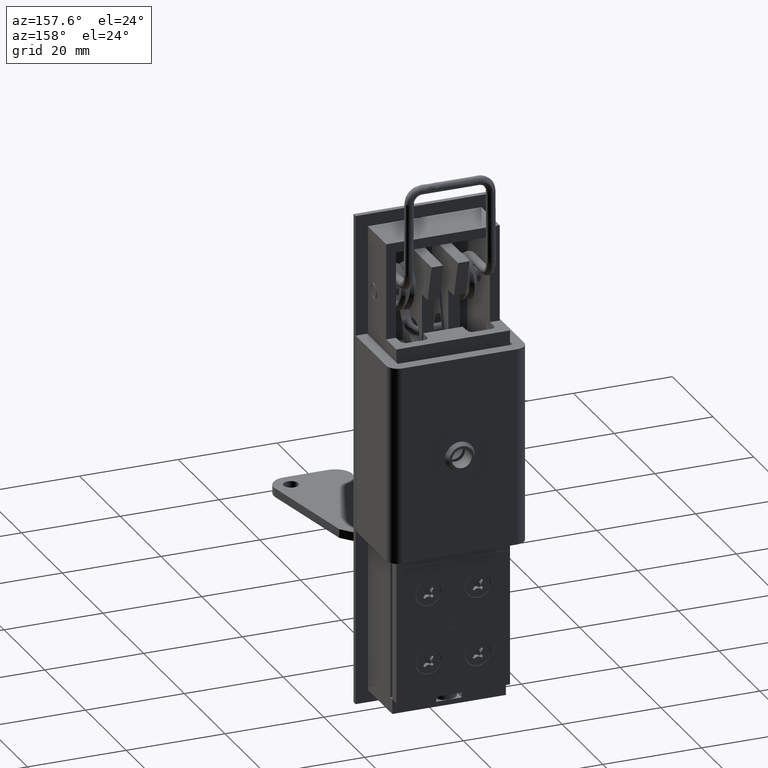
[diagram: clean part render]
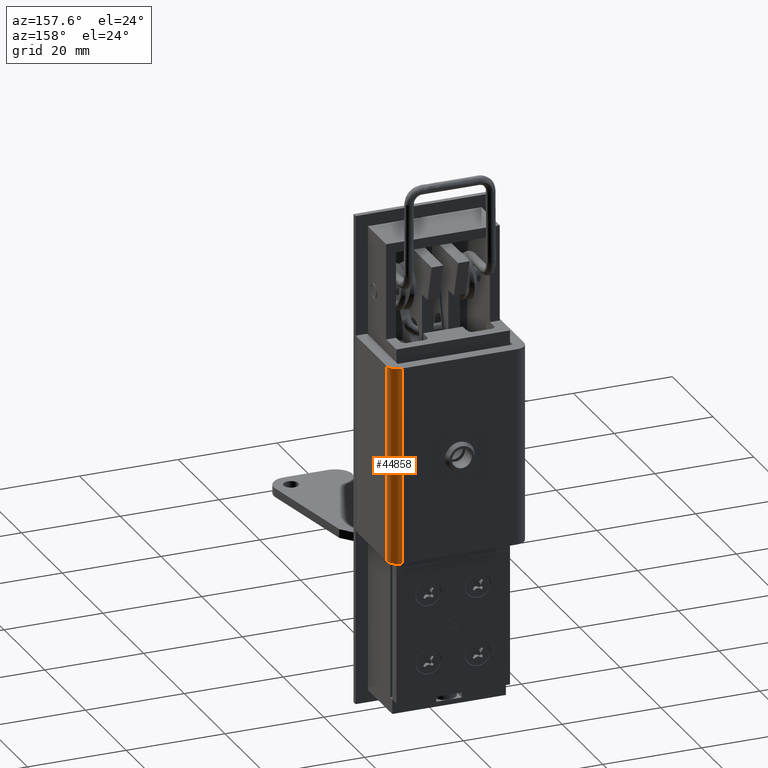
[diagram: same view with one face highlighted and labeled with its STEP entity id]
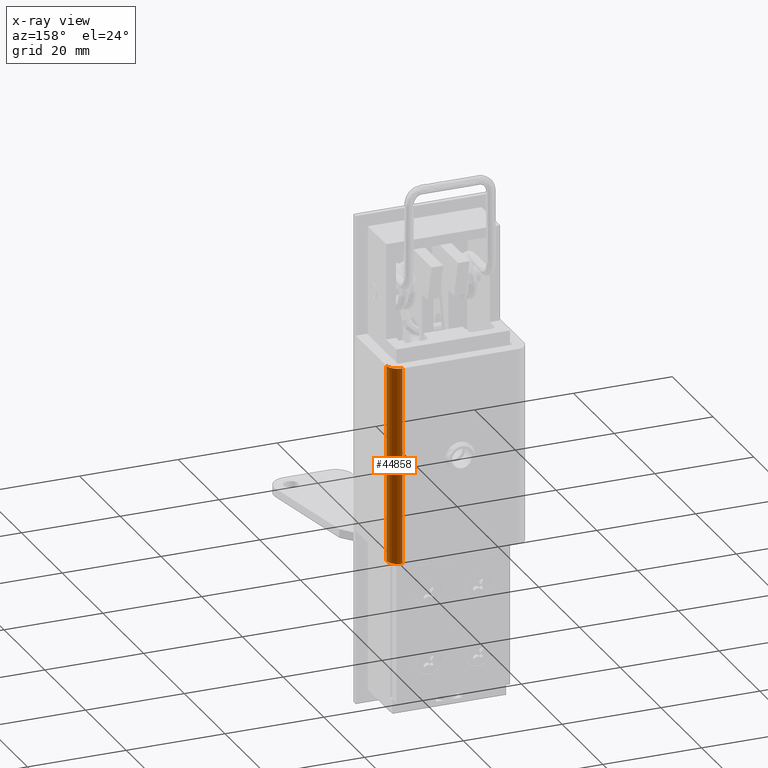
[diagram: x-ray of the same camera — body ghosted, the highlighted face saturated]
A machine part, auxiliary view. The second image highlights one B-rep face of the part: STEP entity #44858.
The next image is the same camera in x-ray: the body ghosted, the highlighted face saturated — about 0% of this face is hidden behind the body in this view.
In plain terms, the highlighted face is a freeform B-spline surface patch.
Its self-contained STEP definition (entity closure, byte-faithful):
#44589=CARTESIAN_POINT('',(16.0,-13.949999999999999,75.500010000000003));
#44590=VERTEX_POINT('',#44589);
#44596=CARTESIAN_POINT('',(18.300000000000001,-11.650000000000000,75.500010000000003));
#44597=VERTEX_POINT('',#44596);
#44598=CARTESIAN_POINT('',(16.0,-13.949999999999999,75.500010000000003));
#44599=CARTESIAN_POINT('',(18.300000000000004,-13.949999999999999,75.500010000000003));
#44600=CARTESIAN_POINT('',(18.300000000000001,-11.650000000000000,75.500010000000003));
#44608=(BOUNDED_CURVE()B_SPLINE_CURVE(2,(#44598,#44599,#44600),.UNSPECIFIED.,.F.,.U.)CURVE()GEOMETRIC_REPRESENTATION_ITEM()QUASI_UNIFORM_CURVE()RATIONAL_B_SPLINE_CURVE((1.0,0.707106781186547,1.0))REPRESENTATION_ITEM(''));
#44609=EDGE_CURVE('',#44590,#44597,#44608,.T.);
#44663=CARTESIAN_POINT('',(18.300000000000001,-11.650000000000000,35.500000000000000));
#44664=VERTEX_POINT('',#44663);
#44670=CARTESIAN_POINT('',(16.0,-13.949999999999999,35.500000000000000));
#44671=VERTEX_POINT('',#44670);
#44672=CARTESIAN_POINT('',(16.0,-13.949999999999999,35.500000000000000));
#44673=CARTESIAN_POINT('',(18.300000000000004,-13.949999999999999,35.499999999999993));
#44674=CARTESIAN_POINT('',(18.300000000000001,-11.650000000000000,35.500000000000000));
#44682=(BOUNDED_CURVE()B_SPLINE_CURVE(2,(#44672,#44673,#44674),.UNSPECIFIED.,.F.,.U.)CURVE()GEOMETRIC_REPRESENTATION_ITEM()QUASI_UNIFORM_CURVE()RATIONAL_B_SPLINE_CURVE((1.0,0.707106781186547,1.0))REPRESENTATION_ITEM(''));
#44683=EDGE_CURVE('',#44671,#44664,#44682,.T.);
#44826=CARTESIAN_POINT('',(16.0,-13.949999999999999,35.500000000000000));
#44827=CARTESIAN_POINT('',(16.0,-13.949999999999999,75.500010000000003));
#44828=QUASI_UNIFORM_CURVE('',1,(#44826,#44827),.UNSPECIFIED.,.F.,.U.);
#44829=EDGE_CURVE('',#44671,#44590,#44828,.T.);
#44834=CARTESIAN_POINT('',(18.299211847443779,-11.589793018891889,34.499999749999994));
#44835=CARTESIAN_POINT('',(18.299211847443779,-11.589793018891889,76.525010256250027));
#44836=CARTESIAN_POINT('',(18.364916237750776,-14.098942453766472,34.499999750000001));
#44837=CARTESIAN_POINT('',(18.364916237750776,-14.098942453766472,76.525010256250013));
#44838=CARTESIAN_POINT('',(15.859588359069830,-13.945710036370301,34.499999749999994));
#44839=CARTESIAN_POINT('',(15.859588359069830,-13.945710036370301,76.525010256250027));
#44847=(BOUNDED_SURFACE()B_SPLINE_SURFACE(1,2,((#44834,#44836,#44838),(#44835,#44837,#44839)),.UNSPECIFIED.,.F.,.F.,.U.)B_SPLINE_SURFACE_WITH_KNOTS((2,2),(3,3),(0.0,42.025010506250041),(0.0,4.048096884204870),.UNSPECIFIED.)GEOMETRIC_REPRESENTATION_ITEM()RATIONAL_B_SPLINE_SURFACE(((1.0,0.675590207615660,1.0),(1.0,0.675590207615660,1.0)))REPRESENTATION_ITEM('')SURFACE());
#44848=ORIENTED_EDGE('',*,*,#44609,.F.);
#44849=ORIENTED_EDGE('',*,*,#44829,.F.);
#44850=ORIENTED_EDGE('',*,*,#44683,.T.);
#44851=CARTESIAN_POINT('',(18.300000000000001,-11.650000000000000,35.500000000000000));
#44852=CARTESIAN_POINT('',(18.300000000000001,-11.650000000000000,75.500010000000003));
#44853=QUASI_UNIFORM_CURVE('',1,(#44851,#44852),.UNSPECIFIED.,.F.,.U.);
#44854=EDGE_CURVE('',#44664,#44597,#44853,.T.);
#44855=ORIENTED_EDGE('',*,*,#44854,.T.);
#44856=EDGE_LOOP('',(#44848,#44849,#44850,#44855));
#44857=FACE_OUTER_BOUND('',#44856,.T.);
#44858=ADVANCED_FACE('',(#44857),#44847,.T.);